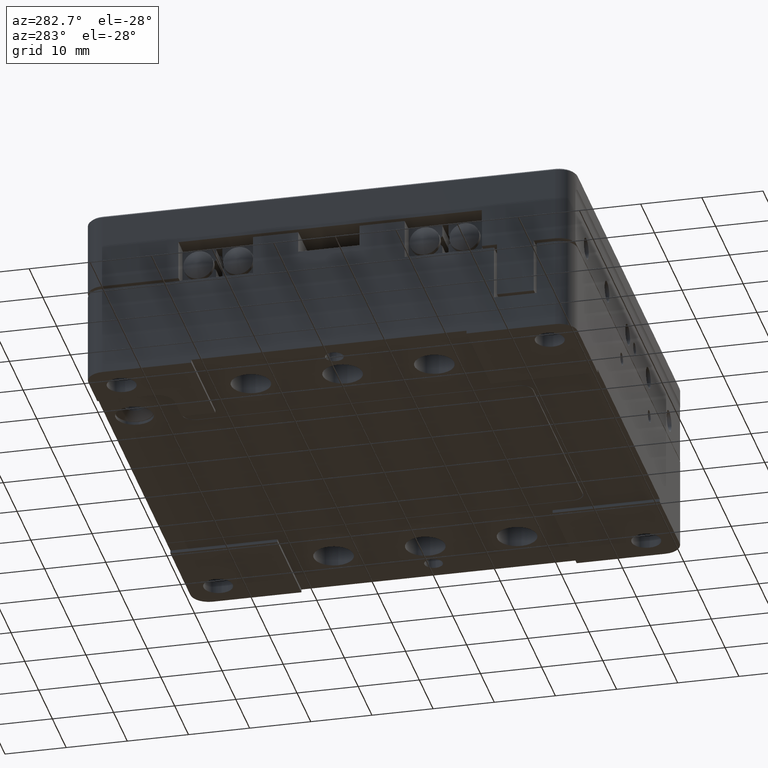
[diagram: clean part render]
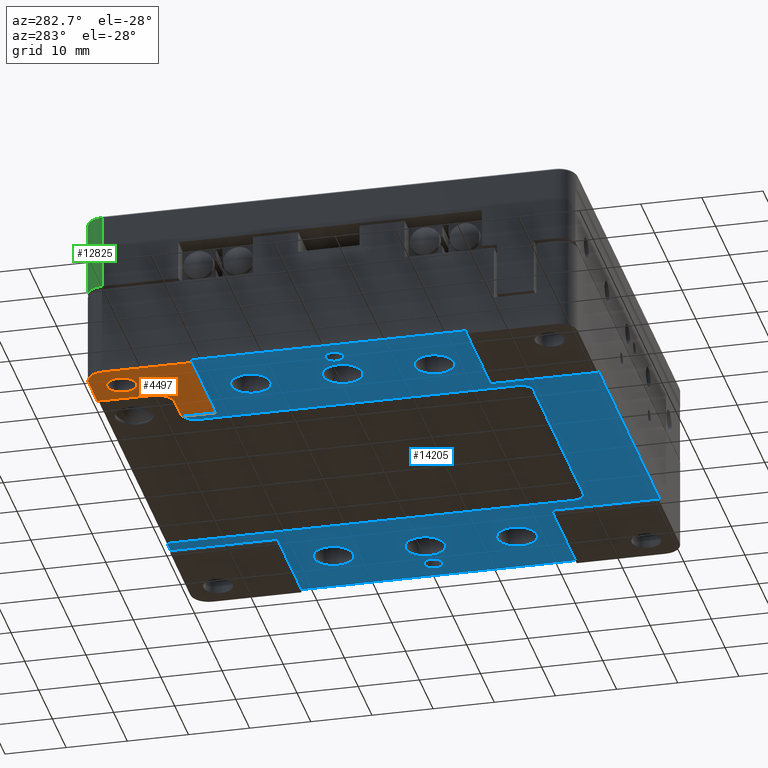
[diagram: same view with three faces highlighted in distinct colors, each labeled with its STEP entity id]
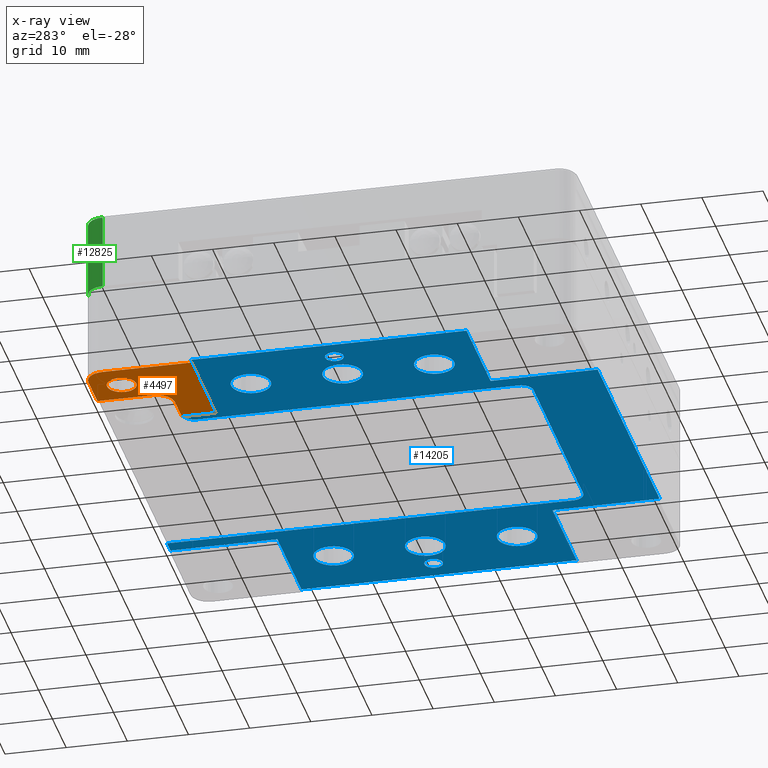
[diagram: x-ray of the same camera — body ghosted, the three highlighted faces saturated]
A machine part, auxiliary view with three faces highlighted in distinct colors.
The next image is the same camera in x-ray (body ghosted, the three faces saturated) — at least one of them is partly hidden behind the body in this view.
Their STEP definitions:

[orange] entity #4497 — the highlighted planar face has unit normal (0, 0, -1).
#83 = EDGE_CURVE ( 'NONE', #12677, #25466, #15871, .T. ) ;
#84 = VECTOR ( 'NONE', #14620, 1000.000000000000000 ) ;
#151 = VERTEX_POINT ( 'NONE', #2257 ) ;
#183 = DIRECTION ( 'NONE',  ( 0.000000000000000000, 0.000000000000000000, 1.000000000000000000 ) ) ;
#366 = EDGE_CURVE ( 'NONE', #13217, #3029, #10704, .T. ) ;
#499 = DIRECTION ( 'NONE',  ( 0.000000000000000000, 1.000000000000000000, 0.000000000000000000 ) ) ;
#873 = EDGE_CURVE ( 'NONE', #3029, #13849, #27592, .T. ) ;
#986 = EDGE_CURVE ( 'NONE', #13983, #23931, #8044, .T. ) ;
#1691 = DIRECTION ( 'NONE',  ( 0.000000000000000000, 0.000000000000000000, 1.000000000000000000 ) ) ;
#1794 = FACE_BOUND ( 'NONE', #19329, .T. ) ;
#1833 = EDGE_CURVE ( 'NONE', #15579, #24065, #21309, .T. ) ;
#2257 = CARTESIAN_POINT ( 'NONE',  ( -40.00000000000000000, 37.00000000000000000, -15.00000000000000000 ) ) ;
#2385 = CARTESIAN_POINT ( 'NONE',  ( -27.50000000000000000, 28.00000000000000000, -15.00000000000000000 ) ) ;
#3029 = VERTEX_POINT ( 'NONE', #2385 ) ;
#3152 = LINE ( 'NONE', #11847, #17386 ) ;
#3239 = CARTESIAN_POINT ( 'NONE',  ( -37.00000000000000000, 40.00000000000000000, -15.00000000000000000 ) ) ;
#4497 = ADVANCED_FACE ( 'NONE', ( #27461, #1794 ), #20405, .T. ) ;
#4570 = LINE ( 'NONE', #13411, #7982 ) ;
#4738 = DIRECTION ( 'NONE',  ( -1.000000000000000000, 0.000000000000000000, 0.000000000000000000 ) ) ;
#4823 = CARTESIAN_POINT ( 'NONE',  ( -40.00000000000000000, -40.00000000000000000, -15.00000000000000000 ) ) ;
#5012 = EDGE_CURVE ( 'NONE', #13849, #13983, #3152, .T. ) ;
#5173 = EDGE_CURVE ( 'NONE', #25466, #12677, #27720, .T. ) ;
#5696 = CARTESIAN_POINT ( 'NONE',  ( -40.00000000000000000, 22.50000000000000000, -15.00000000000000000 ) ) ;
#6104 = DIRECTION ( 'NONE',  ( 1.000000000000000000, 0.000000000000000000, 0.000000000000000000 ) ) ;
#6235 = DIRECTION ( 'NONE',  ( -1.000000000000000000, 0.000000000000000000, 0.000000000000000000 ) ) ;
#6719 = CARTESIAN_POINT ( 'NONE',  ( -22.50000000000000000, 28.00000000000000000, -15.00000000000000000 ) ) ;
#7087 = CIRCLE ( 'NONE', #23535, 3.000000000000002665 ) ;
#7090 = CARTESIAN_POINT ( 'NONE',  ( -30.59999999999999787, 39.50000000000000000, -15.00000000000000000 ) ) ;
#7171 = DIRECTION ( 'NONE',  ( 0.000000000000000000, 0.000000000000000000, -1.000000000000000000 ) ) ;
#7600 = ORIENTED_EDGE ( 'NONE', *, *, #22279, .F. ) ;
#7982 = VECTOR ( 'NONE', #11203, 1000.000000000000000 ) ;
#8044 = LINE ( 'NONE', #5696, #19469 ) ;
#8424 = EDGE_CURVE ( 'NONE', #24065, #13217, #19014, .T. ) ;
#9399 = ORIENTED_EDGE ( 'NONE', *, *, #1833, .T. ) ;
#9664 = CARTESIAN_POINT ( 'NONE',  ( -40.00000000000000000, 28.00000000000000000, -15.00000000000000000 ) ) ;
#9898 = CARTESIAN_POINT ( 'NONE',  ( -32.59999999999999432, 35.00000000000000000, -15.00000000000000000 ) ) ;
#10174 = ORIENTED_EDGE ( 'NONE', *, *, #873, .T. ) ;
#10404 = DIRECTION ( 'NONE',  ( -1.000000000000000000, 0.000000000000000000, 0.000000000000000000 ) ) ;
#10512 = ORIENTED_EDGE ( 'NONE', *, *, #21864, .T. ) ;
#10704 = CIRCLE ( 'NONE', #27120, 2.999999999999999112 ) ;
#10782 = DIRECTION ( 'NONE',  ( 0.000000000000000000, 0.000000000000000000, 1.000000000000000000 ) ) ;
#10783 = AXIS2_PLACEMENT_3D ( 'NONE', #4823, #7171, #12974 ) ;
#11203 = DIRECTION ( 'NONE',  ( -1.000000000000000000, 0.000000000000000000, 0.000000000000000000 ) ) ;
#11673 = LINE ( 'NONE', #13590, #26342 ) ;
#11847 = CARTESIAN_POINT ( 'NONE',  ( -22.50000000000000000, -40.00000000000000000, -15.00000000000000000 ) ) ;
#11937 = EDGE_LOOP ( 'NONE', ( #26509, #10174, #16057, #19842, #10512, #7600, #18813, #9399, #23336 ) ) ;
#12677 = VERTEX_POINT ( 'NONE', #9898 ) ;
#12974 = DIRECTION ( 'NONE',  ( 0.000000000000000000, -1.000000000000000000, 0.000000000000000000 ) ) ;
#13217 = VERTEX_POINT ( 'NONE', #27806 ) ;
#13411 = CARTESIAN_POINT ( 'NONE',  ( -40.00000000000000000, 40.00000000000000000, -15.00000000000000000 ) ) ;
#13590 = CARTESIAN_POINT ( 'NONE',  ( -40.00000000000000000, 0.000000000000000000, -15.00000000000000000 ) ) ;
#13849 = VERTEX_POINT ( 'NONE', #6719 ) ;
#13983 = VERTEX_POINT ( 'NONE', #22731 ) ;
#14298 = EDGE_CURVE ( 'NONE', #15579, #27651, #4570, .T. ) ;
#14494 = DIRECTION ( 'NONE',  ( 0.000000000000000000, -1.000000000000000000, 0.000000000000000000 ) ) ;
#14620 = DIRECTION ( 'NONE',  ( 0.000000000000000000, -1.000000000000000000, 0.000000000000000000 ) ) ;
#15063 = AXIS2_PLACEMENT_3D ( 'NONE', #17286, #1691, #6104 ) ;
#15579 = VERTEX_POINT ( 'NONE', #22268 ) ;
#15814 = DIRECTION ( 'NONE',  ( 1.000000000000000000, 0.000000000000000000, 0.000000000000000000 ) ) ;
#15871 = CIRCLE ( 'NONE', #16323, 2.399999999999999467 ) ;
#16057 = ORIENTED_EDGE ( 'NONE', *, *, #5012, .T. ) ;
#16102 = DIRECTION ( 'NONE',  ( 0.000000000000000000, 0.000000000000000000, 1.000000000000000000 ) ) ;
#16323 = AXIS2_PLACEMENT_3D ( 'NONE', #27266, #16102, #15814 ) ;
#16616 = ORIENTED_EDGE ( 'NONE', *, *, #5173, .T. ) ;
#16991 = CARTESIAN_POINT ( 'NONE',  ( -27.50000000000000000, 31.00000000000000000, -15.00000000000000000 ) ) ;
#17286 = CARTESIAN_POINT ( 'NONE',  ( -35.00000000000000000, 35.00000000000000000, -15.00000000000000000 ) ) ;
#17386 = VECTOR ( 'NONE', #14494, 1000.000000000000000 ) ;
#18813 = ORIENTED_EDGE ( 'NONE', *, *, #14298, .F. ) ;
#18862 = CARTESIAN_POINT ( 'NONE',  ( -30.50000000000000000, -40.00000000000000000, -15.00000000000000000 ) ) ;
#19014 = LINE ( 'NONE', #18862, #84 ) ;
#19329 = EDGE_LOOP ( 'NONE', ( #28877, #16616 ) ) ;
#19469 = VECTOR ( 'NONE', #10404, 1000.000000000000000 ) ;
#19540 = CARTESIAN_POINT ( 'NONE',  ( -37.40000000000000568, 35.00000000000000000, -15.00000000000000000 ) ) ;
#19842 = ORIENTED_EDGE ( 'NONE', *, *, #986, .T. ) ;
#20374 = VECTOR ( 'NONE', #27313, 1000.000000000000000 ) ;
#20405 = PLANE ( 'NONE',  #10783 ) ;
#21309 = CIRCLE ( 'NONE', #26944, 0.5000000000000004441 ) ;
#21864 = EDGE_CURVE ( 'NONE', #23931, #151, #11673, .T. ) ;
#22268 = CARTESIAN_POINT ( 'NONE',  ( -30.59999999999999787, 40.00000000000000000, -15.00000000000000000 ) ) ;
#22279 = EDGE_CURVE ( 'NONE', #27651, #151, #7087, .T. ) ;
#22531 = DIRECTION ( 'NONE',  ( 0.000000000000000000, 0.000000000000000000, -1.000000000000000000 ) ) ;
#22731 = CARTESIAN_POINT ( 'NONE',  ( -22.50000000000000000, 22.50000000000000000, -15.00000000000000000 ) ) ;
#23336 = ORIENTED_EDGE ( 'NONE', *, *, #8424, .T. ) ;
#23535 = AXIS2_PLACEMENT_3D ( 'NONE', #24736, #183, #26945 ) ;
#23931 = VERTEX_POINT ( 'NONE', #24405 ) ;
#24065 = VERTEX_POINT ( 'NONE', #27578 ) ;
#24405 = CARTESIAN_POINT ( 'NONE',  ( -40.00000000000000000, 22.50000000000000000, -15.00000000000000000 ) ) ;
#24736 = CARTESIAN_POINT ( 'NONE',  ( -37.00000000000000000, 37.00000000000000000, -15.00000000000000000 ) ) ;
#25466 = VERTEX_POINT ( 'NONE', #19540 ) ;
#26342 = VECTOR ( 'NONE', #499, 1000.000000000000000 ) ;
#26509 = ORIENTED_EDGE ( 'NONE', *, *, #366, .T. ) ;
#26944 = AXIS2_PLACEMENT_3D ( 'NONE', #7090, #22531, #4738 ) ;
#26945 = DIRECTION ( 'NONE',  ( -1.000000000000000000, 0.000000000000000000, 0.000000000000000000 ) ) ;
#27120 = AXIS2_PLACEMENT_3D ( 'NONE', #16991, #10782, #6235 ) ;
#27266 = CARTESIAN_POINT ( 'NONE',  ( -35.00000000000000000, 35.00000000000000000, -15.00000000000000000 ) ) ;
#27313 = DIRECTION ( 'NONE',  ( 1.000000000000000000, 0.000000000000000000, 0.000000000000000000 ) ) ;
#27461 = FACE_OUTER_BOUND ( 'NONE', #11937, .T. ) ;
#27578 = CARTESIAN_POINT ( 'NONE',  ( -30.50000000000034817, 39.98989794855670254, -15.00000000000000000 ) ) ;
#27592 = LINE ( 'NONE', #9664, #20374 ) ;
#27651 = VERTEX_POINT ( 'NONE', #3239 ) ;
#27720 = CIRCLE ( 'NONE', #15063, 2.399999999999999467 ) ;
#27806 = CARTESIAN_POINT ( 'NONE',  ( -30.50000000000000000, 31.00000000000000000, -15.00000000000000000 ) ) ;
#28877 = ORIENTED_EDGE ( 'NONE', *, *, #83, .T. ) ;

[blue] entity #14205 — the highlighted planar face has unit normal (0, 0, -1).
#17 = DIRECTION ( 'NONE',  ( -1.000000000000000000, 0.000000000000000000, 0.000000000000000000 ) ) ;
#93 = CARTESIAN_POINT ( 'NONE',  ( 0.000000000000000000, -22.50000000000000000, -14.50000000000000000 ) ) ;
#184 = ORIENTED_EDGE ( 'NONE', *, *, #26196, .T. ) ;
#452 = VERTEX_POINT ( 'NONE', #13288 ) ;
#492 = CARTESIAN_POINT ( 'NONE',  ( 30.00000000000000000, -15.00000000000000000, -14.50000000000000000 ) ) ;
#563 = ORIENTED_EDGE ( 'NONE', *, *, #13031, .T. ) ;
#597 = CARTESIAN_POINT ( 'NONE',  ( 22.50000000000000000, 0.000000000000000000, -14.50000000000000000 ) ) ;
#611 = DIRECTION ( 'NONE',  ( -1.000000000000000000, 0.000000000000000000, 0.000000000000000000 ) ) ;
#658 = DIRECTION ( 'NONE',  ( 0.000000000000000000, 1.000000000000000000, 0.000000000000000000 ) ) ;
#898 = CARTESIAN_POINT ( 'NONE',  ( 30.00000000000000000, 0.000000000000000000, -14.50000000000000000 ) ) ;
#1150 = CIRCLE ( 'NONE', #17579, 3.249999999999999556 ) ;
#1348 = VERTEX_POINT ( 'NONE', #15960 ) ;
#1491 = EDGE_CURVE ( 'NONE', #2594, #7069, #20790, .T. ) ;
#1502 = ORIENTED_EDGE ( 'NONE', *, *, #11742, .T. ) ;
#1661 = CARTESIAN_POINT ( 'NONE',  ( 0.000000000000000000, 0.000000000000000000, -14.50000000000000000 ) ) ;
#1683 = VERTEX_POINT ( 'NONE', #28573 ) ;
#1756 = CIRCLE ( 'NONE', #22868, 3.249999999999999556 ) ;
#1926 = CARTESIAN_POINT ( 'NONE',  ( 22.50000000000000000, 0.000000000000000000, -14.50000000000000000 ) ) ;
#1954 = DIRECTION ( 'NONE',  ( 0.000000000000000000, 0.000000000000000000, 1.000000000000000000 ) ) ;
#1996 = ORIENTED_EDGE ( 'NONE', *, *, #18757, .T. ) ;
#2032 = EDGE_LOOP ( 'NONE', ( #19676, #28762 ) ) ;
#2068 = LINE ( 'NONE', #1926, #23295 ) ;
#2216 = VERTEX_POINT ( 'NONE', #2343 ) ;
#2289 = AXIS2_PLACEMENT_3D ( 'NONE', #13705, #17817, #6651 ) ;
#2320 = DIRECTION ( 'NONE',  ( 0.000000000000000000, 1.000000000000000000, 0.000000000000000000 ) ) ;
#2343 = CARTESIAN_POINT ( 'NONE',  ( 22.50000000000000000, 22.50000000000000000, -14.50000000000000000 ) ) ;
#2387 = DIRECTION ( 'NONE',  ( 0.000000000000000000, 0.000000000000000000, 1.000000000000000000 ) ) ;
#2464 = ORIENTED_EDGE ( 'NONE', *, *, #16561, .T. ) ;
#2482 = VERTEX_POINT ( 'NONE', #26449 ) ;
#2538 = DIRECTION ( 'NONE',  ( -1.000000000000000000, 0.000000000000000000, 0.000000000000000000 ) ) ;
#2554 = DIRECTION ( 'NONE',  ( -1.000000000000000000, 0.000000000000000000, 0.000000000000000000 ) ) ;
#2594 = VERTEX_POINT ( 'NONE', #26887 ) ;
#2601 = CARTESIAN_POINT ( 'NONE',  ( -22.50000000000000000, 28.00000000000000000, -14.50000000000000000 ) ) ;
#2610 = CARTESIAN_POINT ( 'NONE',  ( -22.50000000000000000, -40.00000000000000000, -14.50000000000000000 ) ) ;
#2697 = VERTEX_POINT ( 'NONE', #2601 ) ;
#2896 = DIRECTION ( 'NONE',  ( -1.000000000000000000, 0.000000000000000000, 0.000000000000000000 ) ) ;
#2955 = ORIENTED_EDGE ( 'NONE', *, *, #8251, .T. ) ;
#3019 = CARTESIAN_POINT ( 'NONE',  ( -34.50000000000000000, 1.836970198721030181E-16, -14.50000000000000000 ) ) ;
#3071 = CARTESIAN_POINT ( 'NONE',  ( 22.50000000000000000, -40.00000000000000000, -14.50000000000000000 ) ) ;
#3142 = AXIS2_PLACEMENT_3D ( 'NONE', #13514, #10887, #10730 ) ;
#3184 = AXIS2_PLACEMENT_3D ( 'NONE', #7234, #2387, #16221 ) ;
#3250 = VERTEX_POINT ( 'NONE', #16150 ) ;
#3258 = AXIS2_PLACEMENT_3D ( 'NONE', #22405, #6263, #28753 ) ;
#3268 = CIRCLE ( 'NONE', #19712, 3.249999999999999556 ) ;
#3328 = VECTOR ( 'NONE', #19948, 1000.000000000000000 ) ;
#3332 = VERTEX_POINT ( 'NONE', #4956 ) ;
#3335 = CARTESIAN_POINT ( 'NONE',  ( 36.00000000000000000, 0.000000000000000000, -14.50000000000000000 ) ) ;
#3382 = CIRCLE ( 'NONE', #19819, 1.999999999999998224 ) ;
#3577 = CARTESIAN_POINT ( 'NONE',  ( 20.00000000000000000, 40.00000000000000000, -14.50000000000000000 ) ) ;
#3643 = CARTESIAN_POINT ( 'NONE',  ( -33.25000000000000000, -15.00000000000000000, -14.50000000000000000 ) ) ;
#3739 = EDGE_CURVE ( 'NONE', #14012, #14692, #10991, .T. ) ;
#3802 = ORIENTED_EDGE ( 'NONE', *, *, #14940, .T. ) ;
#4361 = DIRECTION ( 'NONE',  ( -1.000000000000000000, 0.000000000000000000, 0.000000000000000000 ) ) ;
#4438 = VERTEX_POINT ( 'NONE', #5782 ) ;
#4565 = LINE ( 'NONE', #6783, #21232 ) ;
#4642 = EDGE_CURVE ( 'NONE', #20836, #15400, #5138, .T. ) ;
#4696 = VECTOR ( 'NONE', #13807, 1000.000000000000000 ) ;
#4730 = VERTEX_POINT ( 'NONE', #27606 ) ;
#4956 = CARTESIAN_POINT ( 'NONE',  ( -22.50000000000000000, 22.50000000000000000, -14.50000000000000000 ) ) ;
#5001 = CARTESIAN_POINT ( 'NONE',  ( -18.00000000000000000, -28.50000000000000000, -14.50000000000000000 ) ) ;
#5121 = AXIS2_PLACEMENT_3D ( 'NONE', #16447, #10125, #27917 ) ;
#5138 = CIRCLE ( 'NONE', #5121, 1.500000000000001332 ) ;
#5155 = EDGE_CURVE ( 'NONE', #9257, #20128, #12447, .T. ) ;
#5233 = ORIENTED_EDGE ( 'NONE', *, *, #5155, .T. ) ;
#5383 = EDGE_LOOP ( 'NONE', ( #28893, #17789 ) ) ;
#5517 = CARTESIAN_POINT ( 'NONE',  ( -22.50000000000000000, -22.50000000000000000, -14.50000000000000000 ) ) ;
#5550 = CARTESIAN_POINT ( 'NONE',  ( 0.000000000000000000, 22.50000000000000000, -14.50000000000000000 ) ) ;
#5756 = EDGE_LOOP ( 'NONE', ( #5804, #24806 ) ) ;
#5782 = CARTESIAN_POINT ( 'NONE',  ( -40.00000000000000000, 22.50000000000000000, -14.50000000000000000 ) ) ;
#5804 = ORIENTED_EDGE ( 'NONE', *, *, #21059, .T. ) ;
#5891 = VERTEX_POINT ( 'NONE', #22505 ) ;
#5911 = CIRCLE ( 'NONE', #13419, 3.249999999999999556 ) ;
#6115 = DIRECTION ( 'NONE',  ( 1.000000000000000000, 0.000000000000000000, 0.000000000000000000 ) ) ;
#6233 = EDGE_CURVE ( 'NONE', #28171, #9519, #18170, .T. ) ;
#6248 = CARTESIAN_POINT ( 'NONE',  ( -20.00000000000000000, -26.50000000000000000, -14.50000000000000000 ) ) ;
#6263 = DIRECTION ( 'NONE',  ( 0.000000000000000000, 0.000000000000000000, 1.000000000000000000 ) ) ;
#6325 = EDGE_CURVE ( 'NONE', #14012, #5891, #8970, .T. ) ;
#6366 = DIRECTION ( 'NONE',  ( -1.000000000000000000, 0.000000000000000000, 0.000000000000000000 ) ) ;
#6491 = DIRECTION ( 'NONE',  ( 1.000000000000000000, 0.000000000000000000, 0.000000000000000000 ) ) ;
#6590 = ORIENTED_EDGE ( 'NONE', *, *, #6233, .T. ) ;
#6651 = DIRECTION ( 'NONE',  ( -1.000000000000000000, 0.000000000000000000, 0.000000000000000000 ) ) ;
#6729 = ORIENTED_EDGE ( 'NONE', *, *, #13541, .T. ) ;
#6770 = CARTESIAN_POINT ( 'NONE',  ( 26.75000000000000000, 15.00000000000000000, -14.50000000000000000 ) ) ;
#6783 = CARTESIAN_POINT ( 'NONE',  ( 0.000000000000000000, 22.50000000000000000, -14.50000000000000000 ) ) ;
#6973 = ORIENTED_EDGE ( 'NONE', *, *, #4642, .T. ) ;
#6977 = DIRECTION ( 'NONE',  ( 0.000000000000000000, 0.000000000000000000, 1.000000000000000000 ) ) ;
#6987 = CARTESIAN_POINT ( 'NONE',  ( -18.00000000000000000, -26.50000000000000000, -14.50000000000000000 ) ) ;
#6992 = LINE ( 'NONE', #9505, #9358 ) ;
#7069 = VERTEX_POINT ( 'NONE', #3577 ) ;
#7127 = DIRECTION ( 'NONE',  ( 1.000000000000000000, 0.000000000000000000, 0.000000000000000000 ) ) ;
#7150 = EDGE_CURVE ( 'NONE', #2482, #26439, #22037, .T. ) ;
#7226 = DIRECTION ( 'NONE',  ( 0.000000000000000000, 0.000000000000000000, 1.000000000000000000 ) ) ;
#7234 = CARTESIAN_POINT ( 'NONE',  ( -30.00000000000000000, -15.00000000000000000, -14.50000000000000000 ) ) ;
#7465 = CARTESIAN_POINT ( 'NONE',  ( -20.00000000000000000, -19.30000000000000071, -14.50000000000000000 ) ) ;
#7554 = VECTOR ( 'NONE', #22359, 1000.000000000000000 ) ;
#7562 = ORIENTED_EDGE ( 'NONE', *, *, #19198, .T. ) ;
#7620 = EDGE_CURVE ( 'NONE', #14692, #26553, #27492, .T. ) ;
#7669 = CARTESIAN_POINT ( 'NONE',  ( -22.50000000000000000, 0.000000000000000000, -14.50000000000000000 ) ) ;
#8137 = VERTEX_POINT ( 'NONE', #3643 ) ;
#8147 = CARTESIAN_POINT ( 'NONE',  ( -30.00000000000000000, 0.000000000000000000, -14.50000000000000000 ) ) ;
#8251 = EDGE_CURVE ( 'NONE', #2216, #5891, #25704, .T. ) ;
#8465 = CARTESIAN_POINT ( 'NONE',  ( -22.00000000000000000, 26.00000000000000000, -14.50000000000000000 ) ) ;
#8514 = AXIS2_PLACEMENT_3D ( 'NONE', #492, #22837, #2538 ) ;
#8519 = AXIS2_PLACEMENT_3D ( 'NONE', #8147, #1954, #6366 ) ;
#8677 = AXIS2_PLACEMENT_3D ( 'NONE', #6987, #18159, #27132 ) ;
#8801 = EDGE_CURVE ( 'NONE', #4438, #3332, #4565, .T. ) ;
#8840 = CIRCLE ( 'NONE', #3184, 3.250000000000002665 ) ;
#8970 = LINE ( 'NONE', #26898, #22393 ) ;
#8992 = EDGE_CURVE ( 'NONE', #9519, #28171, #22166, .T. ) ;
#9074 = DIRECTION ( 'NONE',  ( 0.000000000000000000, 1.000000000000000000, 0.000000000000000000 ) ) ;
#9216 = ORIENTED_EDGE ( 'NONE', *, *, #10208, .T. ) ;
#9257 = VERTEX_POINT ( 'NONE', #2610 ) ;
#9358 = VECTOR ( 'NONE', #9074, 1000.000000000000000 ) ;
#9505 = CARTESIAN_POINT ( 'NONE',  ( -40.00000000000000000, 0.000000000000000000, -14.50000000000000000 ) ) ;
#9519 = VERTEX_POINT ( 'NONE', #21285 ) ;
#9522 = ORIENTED_EDGE ( 'NONE', *, *, #14018, .T. ) ;
#9569 = CARTESIAN_POINT ( 'NONE',  ( -33.25000000000000000, 15.00000000000000000, -14.50000000000000000 ) ) ;
#9881 = LINE ( 'NONE', #7669, #14663 ) ;
#9946 = CARTESIAN_POINT ( 'NONE',  ( 0.000000000000000000, -22.50000000000000000, -14.50000000000000000 ) ) ;
#9994 = EDGE_CURVE ( 'NONE', #24840, #2594, #3382, .T. ) ;
#10039 = VECTOR ( 'NONE', #658, 1000.000000000000000 ) ;
#10125 = DIRECTION ( 'NONE',  ( 0.000000000000000000, 0.000000000000000000, 1.000000000000000000 ) ) ;
#10208 = EDGE_CURVE ( 'NONE', #1348, #4730, #12732, .T. ) ;
#10282 = CARTESIAN_POINT ( 'NONE',  ( -26.75000000000000000, 3.980102097228900204E-16, -14.50000000000000000 ) ) ;
#10454 = DIRECTION ( 'NONE',  ( -1.000000000000000000, 0.000000000000000000, 0.000000000000000000 ) ) ;
#10483 = DIRECTION ( 'NONE',  ( 0.000000000000000000, 0.000000000000000000, 1.000000000000000000 ) ) ;
#10730 = DIRECTION ( 'NONE',  ( -1.000000000000000000, 0.000000000000000000, 0.000000000000000000 ) ) ;
#10748 = VECTOR ( 'NONE', #27434, 1000.000000000000000 ) ;
#10887 = DIRECTION ( 'NONE',  ( 0.000000000000000000, 0.000000000000000000, 1.000000000000000000 ) ) ;
#10991 = LINE ( 'NONE', #93, #3328 ) ;
#11246 = DIRECTION ( 'NONE',  ( 0.000000000000000000, 0.000000000000000000, 1.000000000000000000 ) ) ;
#11349 = CARTESIAN_POINT ( 'NONE',  ( -30.00000000000000000, 0.000000000000000000, -14.50000000000000000 ) ) ;
#11404 = VERTEX_POINT ( 'NONE', #28115 ) ;
#11406 = ORIENTED_EDGE ( 'NONE', *, *, #8801, .T. ) ;
#11407 = AXIS2_PLACEMENT_3D ( 'NONE', #11349, #26344, #17 ) ;
#11417 = LINE ( 'NONE', #27277, #19608 ) ;
#11742 = EDGE_CURVE ( 'NONE', #25430, #3250, #15179, .T. ) ;
#11872 = VERTEX_POINT ( 'NONE', #15895 ) ;
#11978 = CARTESIAN_POINT ( 'NONE',  ( 20.00000000000000000, 25.50000000000000000, -14.50000000000000000 ) ) ;
#12077 = DIRECTION ( 'NONE',  ( 0.000000000000000000, 0.000000000000000000, 1.000000000000000000 ) ) ;
#12144 = FACE_BOUND ( 'NONE', #25603, .T. ) ;
#12284 = ORIENTED_EDGE ( 'NONE', *, *, #8992, .T. ) ;
#12447 = LINE ( 'NONE', #21391, #20195 ) ;
#12459 = VERTEX_POINT ( 'NONE', #6248 ) ;
#12515 = DIRECTION ( 'NONE',  ( 0.000000000000000000, 0.000000000000000000, 1.000000000000000000 ) ) ;
#12657 = CIRCLE ( 'NONE', #3258, 1.500000000000001332 ) ;
#12699 = DIRECTION ( 'NONE',  ( 0.000000000000000000, 0.000000000000000000, -1.000000000000000000 ) ) ;
#12732 = CIRCLE ( 'NONE', #8514, 3.249999999999999556 ) ;
#12942 = EDGE_CURVE ( 'NONE', #15400, #20836, #25878, .T. ) ;
#13031 = EDGE_CURVE ( 'NONE', #2697, #11404, #26775, .T. ) ;
#13039 = ORIENTED_EDGE ( 'NONE', *, *, #20103, .T. ) ;
#13288 = CARTESIAN_POINT ( 'NONE',  ( 33.25000000000000000, 3.980102097228895273E-16, -14.50000000000000000 ) ) ;
#13419 = AXIS2_PLACEMENT_3D ( 'NONE', #20140, #17798, #22065 ) ;
#13514 = CARTESIAN_POINT ( 'NONE',  ( -30.00000000000000000, 15.00000000000000000, -14.50000000000000000 ) ) ;
#13521 = ORIENTED_EDGE ( 'NONE', *, *, #1491, .T. ) ;
#13541 = EDGE_CURVE ( 'NONE', #26553, #9257, #15443, .T. ) ;
#13563 = DIRECTION ( 'NONE',  ( -1.000000000000000000, 0.000000000000000000, 0.000000000000000000 ) ) ;
#13705 = CARTESIAN_POINT ( 'NONE',  ( 30.00000000000000000, 15.00000000000000000, -14.50000000000000000 ) ) ;
#13807 = DIRECTION ( 'NONE',  ( 0.000000000000000000, -1.000000000000000000, 0.000000000000000000 ) ) ;
#13878 = ORIENTED_EDGE ( 'NONE', *, *, #12942, .T. ) ;
#14012 = VERTEX_POINT ( 'NONE', #22865 ) ;
#14018 = EDGE_CURVE ( 'NONE', #16110, #4438, #6992, .T. ) ;
#14129 = AXIS2_PLACEMENT_3D ( 'NONE', #14904, #10483, #28413 ) ;
#14205 = ADVANCED_FACE ( 'NONE', ( #21801, #19593, #16567, #26355, #12144, #24014, #14911, #17252, #25526 ), #15203, .T. ) ;
#14248 = LINE ( 'NONE', #7465, #4696 ) ;
#14269 = CARTESIAN_POINT ( 'NONE',  ( -30.00000000000000000, -15.00000000000000000, -14.50000000000000000 ) ) ;
#14663 = VECTOR ( 'NONE', #23552, 1000.000000000000000 ) ;
#14692 = VERTEX_POINT ( 'NONE', #28521 ) ;
#14904 = CARTESIAN_POINT ( 'NONE',  ( -36.00000000000000000, 0.000000000000000000, -14.50000000000000000 ) ) ;
#14911 = FACE_BOUND ( 'NONE', #23644, .T. ) ;
#14940 = EDGE_CURVE ( 'NONE', #23594, #12459, #14248, .T. ) ;
#15123 = CIRCLE ( 'NONE', #8519, 3.250000000000002665 ) ;
#15133 = DIRECTION ( 'NONE',  ( 1.000000000000000000, 0.000000000000000000, 0.000000000000000000 ) ) ;
#15179 = CIRCLE ( 'NONE', #11407, 3.250000000000002665 ) ;
#15203 = PLANE ( 'NONE',  #22041 ) ;
#15400 = VERTEX_POINT ( 'NONE', #3019 ) ;
#15443 = LINE ( 'NONE', #24395, #15471 ) ;
#15471 = VECTOR ( 'NONE', #15792, 1000.000000000000000 ) ;
#15640 = EDGE_CURVE ( 'NONE', #11404, #23594, #24006, .T. ) ;
#15792 = DIRECTION ( 'NONE',  ( -1.000000000000000000, 0.000000000000000000, 0.000000000000000000 ) ) ;
#15895 = CARTESIAN_POINT ( 'NONE',  ( 22.50000000000000000, 40.00000000000000000, -14.50000000000000000 ) ) ;
#15960 = CARTESIAN_POINT ( 'NONE',  ( 33.25000000000000000, -15.00000000000000000, -14.50000000000000000 ) ) ;
#16110 = VERTEX_POINT ( 'NONE', #28469 ) ;
#16150 = CARTESIAN_POINT ( 'NONE',  ( -33.25000000000000000, 0.000000000000000000, -14.50000000000000000 ) ) ;
#16170 = CIRCLE ( 'NONE', #8677, 1.999999999999998224 ) ;
#16221 = DIRECTION ( 'NONE',  ( -1.000000000000000000, 0.000000000000000000, 0.000000000000000000 ) ) ;
#16447 = CARTESIAN_POINT ( 'NONE',  ( -36.00000000000000000, 0.000000000000000000, -14.50000000000000000 ) ) ;
#16481 = DIRECTION ( 'NONE',  ( -1.000000000000000000, 0.000000000000000000, 0.000000000000000000 ) ) ;
#16490 = EDGE_CURVE ( 'NONE', #26439, #2482, #5911, .T. ) ;
#16494 = AXIS2_PLACEMENT_3D ( 'NONE', #8465, #19923, #6115 ) ;
#16561 = EDGE_CURVE ( 'NONE', #11872, #2216, #2068, .T. ) ;
#16567 = FACE_BOUND ( 'NONE', #24665, .T. ) ;
#16735 = ORIENTED_EDGE ( 'NONE', *, *, #7620, .T. ) ;
#16924 = DIRECTION ( 'NONE',  ( 0.000000000000000000, 0.000000000000000000, 1.000000000000000000 ) ) ;
#17040 = CARTESIAN_POINT ( 'NONE',  ( -26.75000000000000000, -15.00000000000000000, -14.50000000000000000 ) ) ;
#17150 = EDGE_CURVE ( 'NONE', #11872, #7069, #20684, .T. ) ;
#17252 = FACE_BOUND ( 'NONE', #20670, .T. ) ;
#17405 = AXIS2_PLACEMENT_3D ( 'NONE', #3335, #7226, #13563 ) ;
#17529 = EDGE_CURVE ( 'NONE', #452, #24499, #1756, .T. ) ;
#17579 = AXIS2_PLACEMENT_3D ( 'NONE', #24938, #24793, #4361 ) ;
#17678 = EDGE_CURVE ( 'NONE', #12459, #24814, #16170, .T. ) ;
#17757 = VERTEX_POINT ( 'NONE', #26515 ) ;
#17789 = ORIENTED_EDGE ( 'NONE', *, *, #7150, .T. ) ;
#17798 = DIRECTION ( 'NONE',  ( 0.000000000000000000, 0.000000000000000000, 1.000000000000000000 ) ) ;
#17817 = DIRECTION ( 'NONE',  ( 0.000000000000000000, 0.000000000000000000, 1.000000000000000000 ) ) ;
#17827 = AXIS2_PLACEMENT_3D ( 'NONE', #14269, #16924, #16481 ) ;
#17905 = VECTOR ( 'NONE', #15133, 1000.000000000000000 ) ;
#18115 = CARTESIAN_POINT ( 'NONE',  ( -20.00000000000000000, 26.00000000000000000, -14.50000000000000000 ) ) ;
#18159 = DIRECTION ( 'NONE',  ( 0.000000000000000000, 0.000000000000000000, 1.000000000000000000 ) ) ;
#18170 = CIRCLE ( 'NONE', #3142, 3.250000000000002665 ) ;
#18316 = ORIENTED_EDGE ( 'NONE', *, *, #9994, .T. ) ;
#18524 = DIRECTION ( 'NONE',  ( 0.000000000000000000, -1.000000000000000000, 0.000000000000000000 ) ) ;
#18549 = VERTEX_POINT ( 'NONE', #17040 ) ;
#18757 = EDGE_CURVE ( 'NONE', #24814, #24840, #11417, .T. ) ;
#18913 = LINE ( 'NONE', #9946, #10748 ) ;
#19198 = EDGE_CURVE ( 'NONE', #8137, #18549, #8840, .T. ) ;
#19231 = VECTOR ( 'NONE', #18524, 1000.000000000000000 ) ;
#19593 = FACE_BOUND ( 'NONE', #28770, .T. ) ;
#19608 = VECTOR ( 'NONE', #7127, 1000.000000000000000 ) ;
#19676 = ORIENTED_EDGE ( 'NONE', *, *, #23443, .T. ) ;
#19712 = AXIS2_PLACEMENT_3D ( 'NONE', #898, #12077, #611 ) ;
#19723 = CIRCLE ( 'NONE', #17827, 3.250000000000002665 ) ;
#19819 = AXIS2_PLACEMENT_3D ( 'NONE', #24199, #11246, #22401 ) ;
#19923 = DIRECTION ( 'NONE',  ( 0.000000000000000000, 0.000000000000000000, -1.000000000000000000 ) ) ;
#19948 = DIRECTION ( 'NONE',  ( -1.000000000000000000, 0.000000000000000000, 0.000000000000000000 ) ) ;
#20103 = EDGE_CURVE ( 'NONE', #20128, #16110, #18913, .T. ) ;
#20128 = VERTEX_POINT ( 'NONE', #5517 ) ;
#20140 = CARTESIAN_POINT ( 'NONE',  ( 30.00000000000000000, 15.00000000000000000, -14.50000000000000000 ) ) ;
#20195 = VECTOR ( 'NONE', #24189, 1000.000000000000000 ) ;
#20629 = ORIENTED_EDGE ( 'NONE', *, *, #22089, .T. ) ;
#20670 = EDGE_LOOP ( 'NONE', ( #26411, #9216 ) ) ;
#20684 = LINE ( 'NONE', #23037, #28027 ) ;
#20790 = LINE ( 'NONE', #11978, #10039 ) ;
#20836 = VERTEX_POINT ( 'NONE', #28424 ) ;
#21059 = EDGE_CURVE ( 'NONE', #24499, #452, #3268, .T. ) ;
#21232 = VECTOR ( 'NONE', #6491, 1000.000000000000000 ) ;
#21285 = CARTESIAN_POINT ( 'NONE',  ( -26.75000000000000000, 15.00000000000000000, -14.50000000000000000 ) ) ;
#21391 = CARTESIAN_POINT ( 'NONE',  ( -22.50000000000000000, 0.000000000000000000, -14.50000000000000000 ) ) ;
#21500 = ORIENTED_EDGE ( 'NONE', *, *, #17678, .T. ) ;
#21801 = FACE_OUTER_BOUND ( 'NONE', #26682, .T. ) ;
#22037 = CIRCLE ( 'NONE', #2289, 3.249999999999999556 ) ;
#22041 = AXIS2_PLACEMENT_3D ( 'NONE', #1661, #12699, #28555 ) ;
#22065 = DIRECTION ( 'NONE',  ( -1.000000000000000000, 0.000000000000000000, 0.000000000000000000 ) ) ;
#22089 = EDGE_CURVE ( 'NONE', #3250, #25430, #15123, .T. ) ;
#22166 = CIRCLE ( 'NONE', #24520, 3.250000000000002665 ) ;
#22359 = DIRECTION ( 'NONE',  ( 1.000000000000000000, 0.000000000000000000, 0.000000000000000000 ) ) ;
#22393 = VECTOR ( 'NONE', #2320, 1000.000000000000000 ) ;
#22401 = DIRECTION ( 'NONE',  ( -1.000000000000000000, 0.000000000000000000, 0.000000000000000000 ) ) ;
#22405 = CARTESIAN_POINT ( 'NONE',  ( 36.00000000000000000, 0.000000000000000000, -14.50000000000000000 ) ) ;
#22505 = CARTESIAN_POINT ( 'NONE',  ( 40.00000000000000000, 22.50000000000000000, -14.50000000000000000 ) ) ;
#22837 = DIRECTION ( 'NONE',  ( 0.000000000000000000, 0.000000000000000000, 1.000000000000000000 ) ) ;
#22865 = CARTESIAN_POINT ( 'NONE',  ( 40.00000000000000000, -22.50000000000000000, -14.50000000000000000 ) ) ;
#22868 = AXIS2_PLACEMENT_3D ( 'NONE', #22996, #6977, #2554 ) ;
#22996 = CARTESIAN_POINT ( 'NONE',  ( 30.00000000000000000, 0.000000000000000000, -14.50000000000000000 ) ) ;
#23002 = CIRCLE ( 'NONE', #17405, 1.500000000000001332 ) ;
#23037 = CARTESIAN_POINT ( 'NONE',  ( -40.00000000000000000, 40.00000000000000000, -14.50000000000000000 ) ) ;
#23271 = ORIENTED_EDGE ( 'NONE', *, *, #3739, .T. ) ;
#23281 = CARTESIAN_POINT ( 'NONE',  ( 26.75000000000000000, 0.000000000000000000, -14.50000000000000000 ) ) ;
#23295 = VECTOR ( 'NONE', #28970, 1000.000000000000000 ) ;
#23443 = EDGE_CURVE ( 'NONE', #17757, #1683, #23002, .T. ) ;
#23552 = DIRECTION ( 'NONE',  ( 0.000000000000000000, 1.000000000000000000, 0.000000000000000000 ) ) ;
#23594 = VERTEX_POINT ( 'NONE', #18115 ) ;
#23644 = EDGE_LOOP ( 'NONE', ( #6590, #12284 ) ) ;
#23671 = ORIENTED_EDGE ( 'NONE', *, *, #6325, .F. ) ;
#24006 = CIRCLE ( 'NONE', #16494, 2.000000000000001776 ) ;
#24014 = FACE_BOUND ( 'NONE', #5756, .T. ) ;
#24189 = DIRECTION ( 'NONE',  ( 0.000000000000000000, 1.000000000000000000, 0.000000000000000000 ) ) ;
#24199 = CARTESIAN_POINT ( 'NONE',  ( 18.00000000000000000, -26.50000000000000000, -14.50000000000000000 ) ) ;
#24238 = EDGE_CURVE ( 'NONE', #1683, #17757, #12657, .T. ) ;
#24395 = CARTESIAN_POINT ( 'NONE',  ( 0.000000000000000000, -40.00000000000000000, -14.50000000000000000 ) ) ;
#24432 = CARTESIAN_POINT ( 'NONE',  ( 0.000000000000000000, 28.00000000000000000, -14.50000000000000000 ) ) ;
#24495 = ORIENTED_EDGE ( 'NONE', *, *, #28441, .T. ) ;
#24499 = VERTEX_POINT ( 'NONE', #23281 ) ;
#24520 = AXIS2_PLACEMENT_3D ( 'NONE', #28243, #12515, #10454 ) ;
#24665 = EDGE_LOOP ( 'NONE', ( #6973, #13878 ) ) ;
#24793 = DIRECTION ( 'NONE',  ( 0.000000000000000000, 0.000000000000000000, 1.000000000000000000 ) ) ;
#24806 = ORIENTED_EDGE ( 'NONE', *, *, #17529, .T. ) ;
#24809 = ORIENTED_EDGE ( 'NONE', *, *, #17150, .F. ) ;
#24814 = VERTEX_POINT ( 'NONE', #5001 ) ;
#24840 = VERTEX_POINT ( 'NONE', #27218 ) ;
#24938 = CARTESIAN_POINT ( 'NONE',  ( 30.00000000000000000, -15.00000000000000000, -14.50000000000000000 ) ) ;
#25430 = VERTEX_POINT ( 'NONE', #10282 ) ;
#25526 = FACE_BOUND ( 'NONE', #5383, .T. ) ;
#25603 = EDGE_LOOP ( 'NONE', ( #20629, #1502 ) ) ;
#25704 = LINE ( 'NONE', #5550, #17905 ) ;
#25878 = CIRCLE ( 'NONE', #14129, 1.500000000000001332 ) ;
#26196 = EDGE_CURVE ( 'NONE', #3332, #2697, #9881, .T. ) ;
#26344 = DIRECTION ( 'NONE',  ( 0.000000000000000000, 0.000000000000000000, 1.000000000000000000 ) ) ;
#26355 = FACE_BOUND ( 'NONE', #2032, .T. ) ;
#26411 = ORIENTED_EDGE ( 'NONE', *, *, #29050, .T. ) ;
#26439 = VERTEX_POINT ( 'NONE', #6770 ) ;
#26449 = CARTESIAN_POINT ( 'NONE',  ( 33.25000000000000000, 15.00000000000000000, -14.50000000000000000 ) ) ;
#26515 = CARTESIAN_POINT ( 'NONE',  ( 34.50000000000000000, 0.000000000000000000, -14.50000000000000000 ) ) ;
#26553 = VERTEX_POINT ( 'NONE', #3071 ) ;
#26682 = EDGE_LOOP ( 'NONE', ( #563, #29032, #3802, #21500, #1996, #18316, #13521, #24809, #2464, #2955, #23671, #23271, #16735, #6729, #5233, #13039, #9522, #11406, #184 ) ) ;
#26775 = LINE ( 'NONE', #24432, #7554 ) ;
#26887 = CARTESIAN_POINT ( 'NONE',  ( 20.00000000000000000, -26.50000000000000000, -14.50000000000000000 ) ) ;
#26898 = CARTESIAN_POINT ( 'NONE',  ( 40.00000000000000000, 0.000000000000000000, -14.50000000000000000 ) ) ;
#27132 = DIRECTION ( 'NONE',  ( -1.000000000000000000, 0.000000000000000000, 0.000000000000000000 ) ) ;
#27218 = CARTESIAN_POINT ( 'NONE',  ( 18.00000000000000000, -28.50000000000000000, -14.50000000000000000 ) ) ;
#27277 = CARTESIAN_POINT ( 'NONE',  ( 18.00000000000000000, -28.50000000000000000, -14.50000000000000000 ) ) ;
#27434 = DIRECTION ( 'NONE',  ( -1.000000000000000000, 0.000000000000000000, 0.000000000000000000 ) ) ;
#27492 = LINE ( 'NONE', #597, #19231 ) ;
#27606 = CARTESIAN_POINT ( 'NONE',  ( 26.75000000000000000, -15.00000000000000000, -14.50000000000000000 ) ) ;
#27917 = DIRECTION ( 'NONE',  ( -1.000000000000000000, 0.000000000000000000, 0.000000000000000000 ) ) ;
#28027 = VECTOR ( 'NONE', #2896, 1000.000000000000000 ) ;
#28115 = CARTESIAN_POINT ( 'NONE',  ( -22.00000000000000000, 28.00000000000000000, -14.50000000000000000 ) ) ;
#28171 = VERTEX_POINT ( 'NONE', #9569 ) ;
#28243 = CARTESIAN_POINT ( 'NONE',  ( -30.00000000000000000, 15.00000000000000000, -14.50000000000000000 ) ) ;
#28413 = DIRECTION ( 'NONE',  ( -1.000000000000000000, 0.000000000000000000, 0.000000000000000000 ) ) ;
#28424 = CARTESIAN_POINT ( 'NONE',  ( -37.50000000000000000, 0.000000000000000000, -14.50000000000000000 ) ) ;
#28441 = EDGE_CURVE ( 'NONE', #18549, #8137, #19723, .T. ) ;
#28469 = CARTESIAN_POINT ( 'NONE',  ( -40.00000000000000000, -22.50000000000000000, -14.50000000000000000 ) ) ;
#28521 = CARTESIAN_POINT ( 'NONE',  ( 22.50000000000000000, -22.50000000000000000, -14.50000000000000000 ) ) ;
#28555 = DIRECTION ( 'NONE',  ( 0.000000000000000000, -1.000000000000000000, 0.000000000000000000 ) ) ;
#28573 = CARTESIAN_POINT ( 'NONE',  ( 37.50000000000000000, 1.836970198721030181E-16, -14.50000000000000000 ) ) ;
#28753 = DIRECTION ( 'NONE',  ( -1.000000000000000000, 0.000000000000000000, 0.000000000000000000 ) ) ;
#28762 = ORIENTED_EDGE ( 'NONE', *, *, #24238, .T. ) ;
#28770 = EDGE_LOOP ( 'NONE', ( #7562, #24495 ) ) ;
#28893 = ORIENTED_EDGE ( 'NONE', *, *, #16490, .T. ) ;
#28970 = DIRECTION ( 'NONE',  ( 0.000000000000000000, -1.000000000000000000, 0.000000000000000000 ) ) ;
#29032 = ORIENTED_EDGE ( 'NONE', *, *, #15640, .T. ) ;
#29050 = EDGE_CURVE ( 'NONE', #4730, #1348, #1150, .T. ) ;

[green] entity #12825 — the highlighted cylindrical surface (edge-blend (fillet) strip) has radius 3 mm, axis along (0, 0, -1).
#703 = DIRECTION ( 'NONE',  ( -1.000000000000000000, 0.000000000000000000, 0.000000000000000000 ) ) ;
#1031 = VERTEX_POINT ( 'NONE', #3179 ) ;
#1656 = LINE ( 'NONE', #28549, #21086 ) ;
#2819 = EDGE_CURVE ( 'NONE', #23131, #10524, #17385, .T. ) ;
#3179 = CARTESIAN_POINT ( 'NONE',  ( -40.00000000000000000, 37.00000000000000000, 0.5000000000000000000 ) ) ;
#3222 = CIRCLE ( 'NONE', #19674, 3.000000000000002665 ) ;
#4248 = ORIENTED_EDGE ( 'NONE', *, *, #4449, .T. ) ;
#4449 = EDGE_CURVE ( 'NONE', #1031, #23131, #1656, .T. ) ;
#5005 = ORIENTED_EDGE ( 'NONE', *, *, #20257, .F. ) ;
#5008 = VERTEX_POINT ( 'NONE', #23612 ) ;
#5679 = DIRECTION ( 'NONE',  ( 0.000000000000000000, 0.000000000000000000, -1.000000000000000000 ) ) ;
#5964 = DIRECTION ( 'NONE',  ( -1.000000000000000000, 0.000000000000000000, 0.000000000000000000 ) ) ;
#7830 = CARTESIAN_POINT ( 'NONE',  ( -37.00000000000000000, 37.00000000000000000, 30.44679999999999964 ) ) ;
#8026 = AXIS2_PLACEMENT_3D ( 'NONE', #7830, #21936, #8131 ) ;
#8131 = DIRECTION ( 'NONE',  ( -1.000000000000000000, 0.000000000000000000, 0.000000000000000000 ) ) ;
#8500 = VECTOR ( 'NONE', #5679, 1000.000000000000000 ) ;
#10524 = VERTEX_POINT ( 'NONE', #18071 ) ;
#11881 = CARTESIAN_POINT ( 'NONE',  ( -37.00000000000000000, 37.00000000000000000, 12.90000000006693881 ) ) ;
#12192 = ORIENTED_EDGE ( 'NONE', *, *, #2819, .T. ) ;
#12306 = LINE ( 'NONE', #25530, #8500 ) ;
#12406 = DIRECTION ( 'NONE',  ( 0.000000000000000000, 0.000000000000000000, 1.000000000000000000 ) ) ;
#12825 = ADVANCED_FACE ( 'NONE', ( #15048 ), #21350, .T. ) ;
#13017 = CARTESIAN_POINT ( 'NONE',  ( -37.00000000000000000, 37.00000000000000000, 0.5000000000000000000 ) ) ;
#15048 = FACE_OUTER_BOUND ( 'NONE', #25754, .T. ) ;
#15253 = ORIENTED_EDGE ( 'NONE', *, *, #15472, .T. ) ;
#15472 = EDGE_CURVE ( 'NONE', #10524, #5008, #12306, .T. ) ;
#15571 = AXIS2_PLACEMENT_3D ( 'NONE', #11881, #20837, #703 ) ;
#17015 = DIRECTION ( 'NONE',  ( 0.000000000000000000, 0.000000000000000000, -1.000000000000000000 ) ) ;
#17385 = CIRCLE ( 'NONE', #15571, 3.000000000000002665 ) ;
#18071 = CARTESIAN_POINT ( 'NONE',  ( -37.00000039854529632, 40.00000000003245759, 12.90000000003442082 ) ) ;
#19674 = AXIS2_PLACEMENT_3D ( 'NONE', #13017, #17015, #5964 ) ;
#20257 = EDGE_CURVE ( 'NONE', #1031, #5008, #3222, .T. ) ;
#20837 = DIRECTION ( 'NONE',  ( 0.000000000000000000, 0.000000000000000000, -1.000000000000000000 ) ) ;
#21086 = VECTOR ( 'NONE', #12406, 1000.000000000000000 ) ;
#21350 = CYLINDRICAL_SURFACE ( 'NONE', #8026, 3.000000000000002665 ) ;
#21936 = DIRECTION ( 'NONE',  ( 0.000000000000000000, 0.000000000000000000, -1.000000000000000000 ) ) ;
#23131 = VERTEX_POINT ( 'NONE', #24675 ) ;
#23612 = CARTESIAN_POINT ( 'NONE',  ( -37.00000039859985179, 40.00000000000000000, 0.5000000000000000000 ) ) ;
#24675 = CARTESIAN_POINT ( 'NONE',  ( -40.00000000003250022, 37.00000021724499533, 12.90000000003442082 ) ) ;
#25530 = CARTESIAN_POINT ( 'NONE',  ( -37.00000079719974622, 40.00000000000000000, 30.44679999999999964 ) ) ;
#25754 = EDGE_LOOP ( 'NONE', ( #4248, #12192, #15253, #5005 ) ) ;
#28549 = CARTESIAN_POINT ( 'NONE',  ( -40.00000000000000000, 37.00000000000000000, 0.000000000000000000 ) ) ;